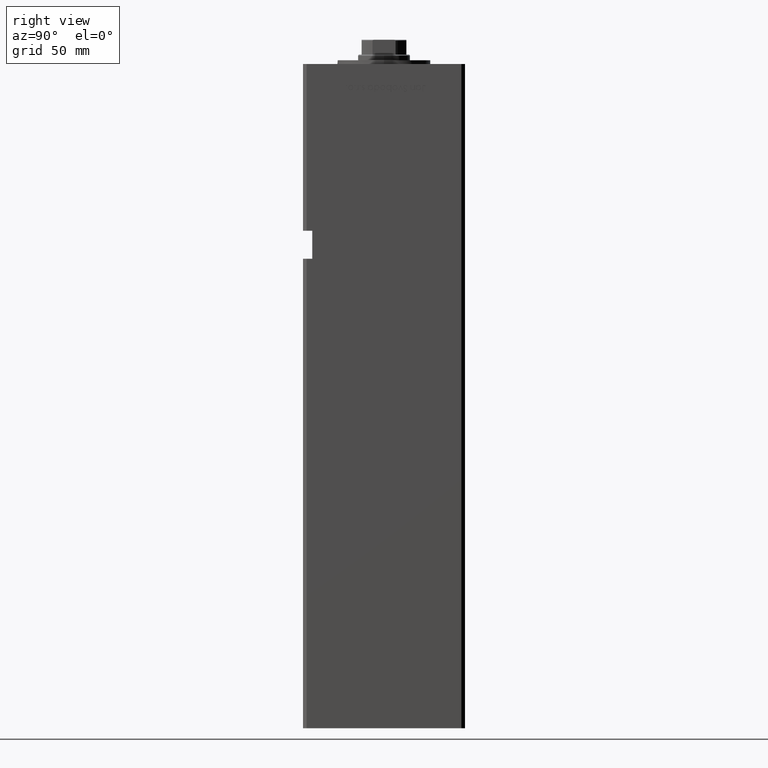
[diagram: clean part render]
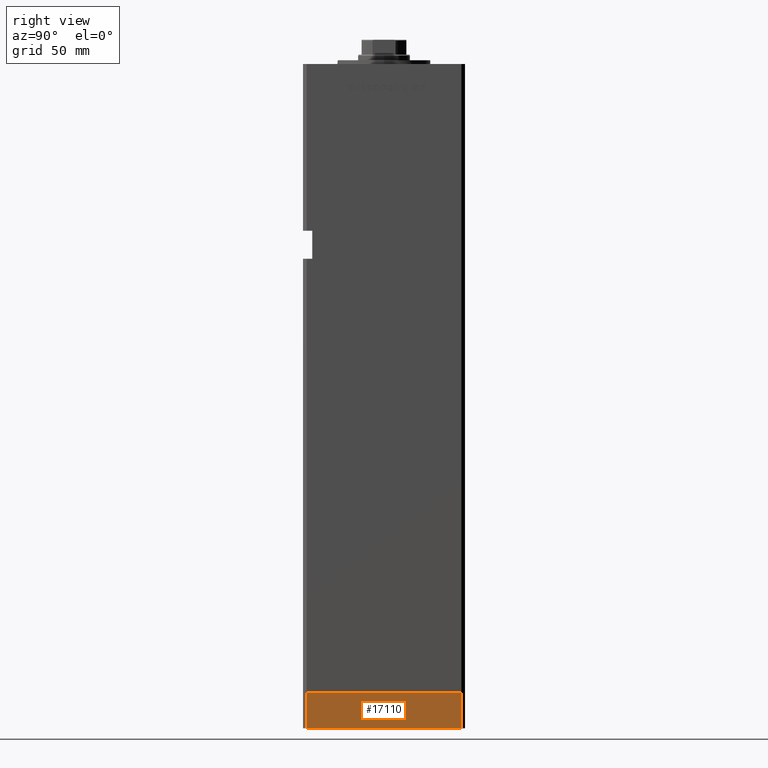
[diagram: same view with one face highlighted and labeled with its STEP entity id]
A machine part, right view. The second image highlights one B-rep face of the part: STEP entity #17110.
In plain terms, the highlighted planar face has unit normal (1, 0, 0).
Its self-contained STEP definition (entity closure, byte-faithful):
#2283 = LINE ( 'NONE', #28116, #29456 ) ;
#2899 = VECTOR ( 'NONE', #46731, 1000.000000000000000 ) ;
#5239 = DIRECTION ( 'NONE',  ( 8.360113137237628665E-17, -1.000000000000000000, 0.000000000000000000 ) ) ;
#5697 = EDGE_CURVE ( 'NONE', #19931, #46954, #2283, .T. ) ;
#6192 = EDGE_LOOP ( 'NONE', ( #44283, #48451, #20184, #51194 ) ) ;
#6634 = EDGE_CURVE ( 'NONE', #46954, #52860, #50649, .T. ) ;
#7790 = VERTEX_POINT ( 'NONE', #46034 ) ;
#10292 = LINE ( 'NONE', #46594, #27797 ) ;
#11898 = DIRECTION ( 'NONE',  ( 8.360113137237628665E-17, -1.000000000000000000, 0.000000000000000000 ) ) ;
#16466 = VECTOR ( 'NONE', #5239, 1000.000000000000000 ) ;
#17110 = ADVANCED_FACE ( 'NONE', ( #44701 ), #27535, .T. ) ;
#19931 = VERTEX_POINT ( 'NONE', #35552 ) ;
#20184 = ORIENTED_EDGE ( 'NONE', *, *, #44972, .T. ) ;
#20261 = DIRECTION ( 'NONE',  ( -1.000000000000000000, -8.360113137237628665E-17, 0.000000000000000000 ) ) ;
#20376 = CARTESIAN_POINT ( 'NONE',  ( -50.00000000000000000, -41.50000000000000000, 0.000000000000000000 ) ) ;
#21388 = CARTESIAN_POINT ( 'NONE',  ( -50.00000000000000711, 41.49999999999995026, 0.000000000000000000 ) ) ;
#22166 = DIRECTION ( 'NONE',  ( 0.000000000000000000, 0.000000000000000000, 1.000000000000000000 ) ) ;
#23018 = DIRECTION ( 'NONE',  ( 0.000000000000000000, 0.000000000000000000, 1.000000000000000000 ) ) ;
#24052 = CARTESIAN_POINT ( 'NONE',  ( -50.00000000000000711, 41.49999999999995026, -19.00000000000000000 ) ) ;
#27535 = PLANE ( 'NONE',  #36506 ) ;
#27797 = VECTOR ( 'NONE', #22166, 1000.000000000000000 ) ;
#28116 = CARTESIAN_POINT ( 'NONE',  ( -50.00000000000000711, 41.49999999999995026, -19.00000000000000000 ) ) ;
#29456 = VECTOR ( 'NONE', #23018, 1000.000000000000000 ) ;
#35552 = CARTESIAN_POINT ( 'NONE',  ( -50.00000000000000711, 41.49999999999995026, -19.00000000000000000 ) ) ;
#36506 = AXIS2_PLACEMENT_3D ( 'NONE', #24052, #20261, #11898 ) ;
#37609 = CARTESIAN_POINT ( 'NONE',  ( -50.00000000000000711, 41.49999999999995026, -19.00000000000000000 ) ) ;
#42177 = LINE ( 'NONE', #37609, #2899 ) ;
#44283 = ORIENTED_EDGE ( 'NONE', *, *, #6634, .F. ) ;
#44701 = FACE_OUTER_BOUND ( 'NONE', #6192, .T. ) ;
#44972 = EDGE_CURVE ( 'NONE', #19931, #7790, #42177, .T. ) ;
#46034 = CARTESIAN_POINT ( 'NONE',  ( -50.00000000000000000, -41.50000000000000000, -19.00000000000000000 ) ) ;
#46594 = CARTESIAN_POINT ( 'NONE',  ( -50.00000000000000000, -41.50000000000000000, -19.00000000000000000 ) ) ;
#46731 = DIRECTION ( 'NONE',  ( 8.360113137237628665E-17, -1.000000000000000000, 0.000000000000000000 ) ) ;
#46954 = VERTEX_POINT ( 'NONE', #48570 ) ;
#48235 = EDGE_CURVE ( 'NONE', #7790, #52860, #10292, .T. ) ;
#48451 = ORIENTED_EDGE ( 'NONE', *, *, #5697, .F. ) ;
#48570 = CARTESIAN_POINT ( 'NONE',  ( -50.00000000000000711, 41.49999999999995026, 0.000000000000000000 ) ) ;
#50649 = LINE ( 'NONE', #21388, #16466 ) ;
#51194 = ORIENTED_EDGE ( 'NONE', *, *, #48235, .T. ) ;
#52860 = VERTEX_POINT ( 'NONE', #20376 ) ;